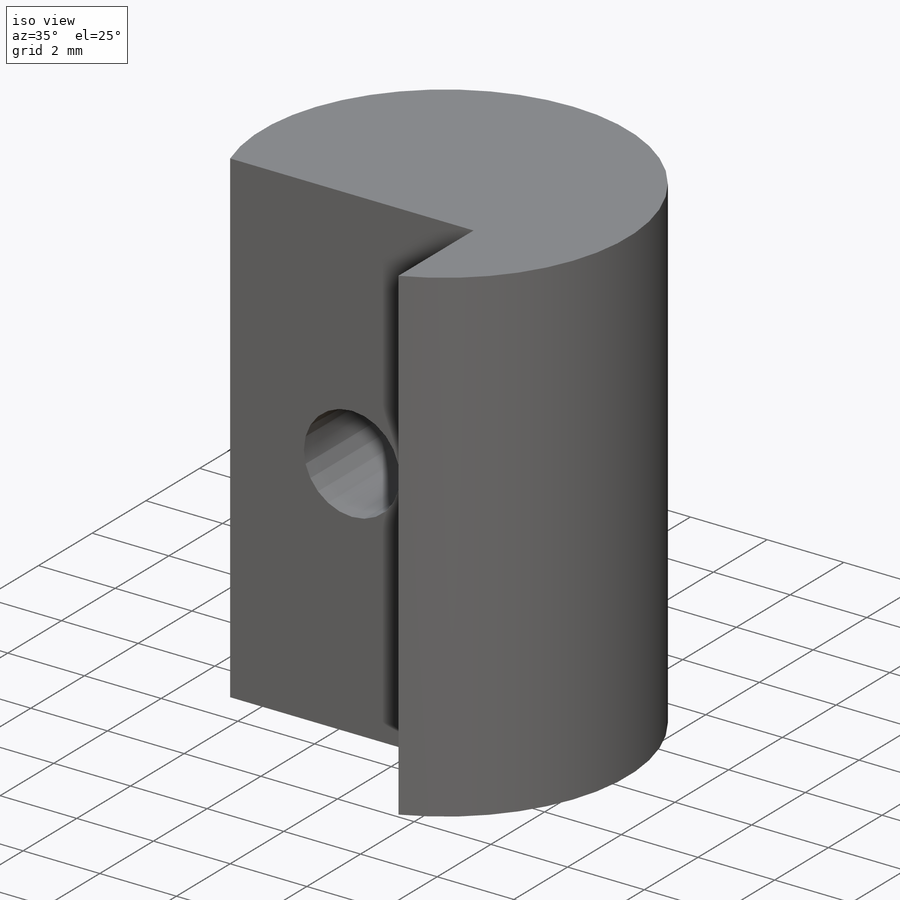
[diagram: iso view]
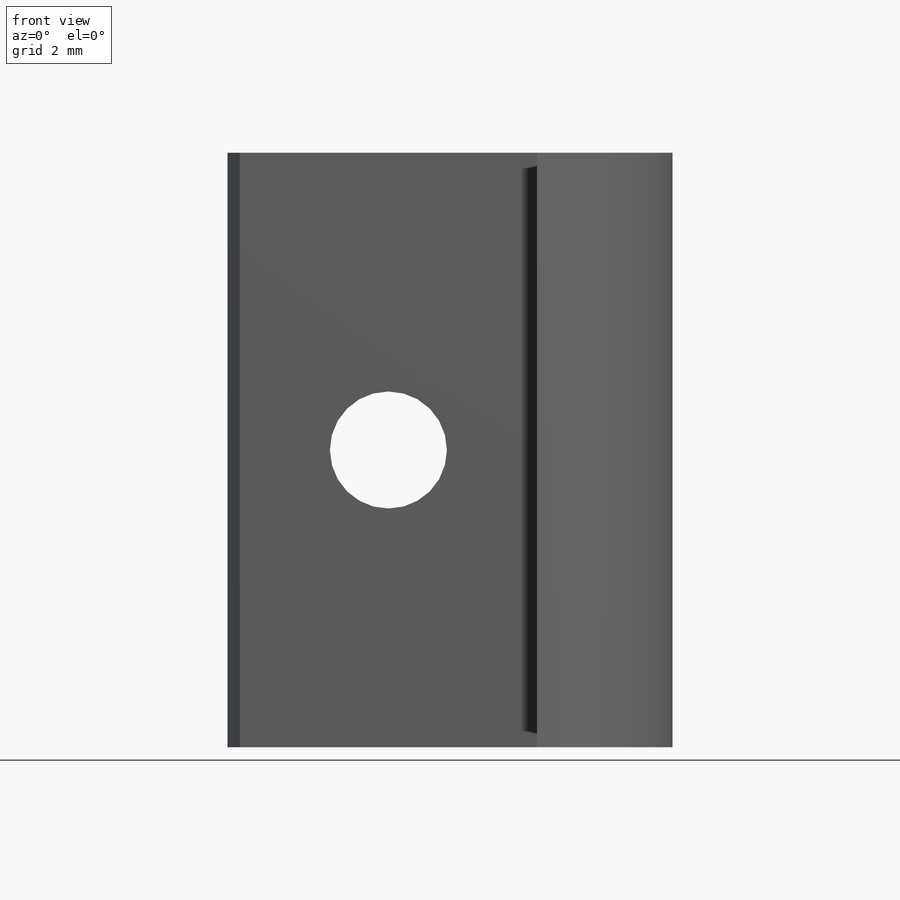
[diagram: front view]
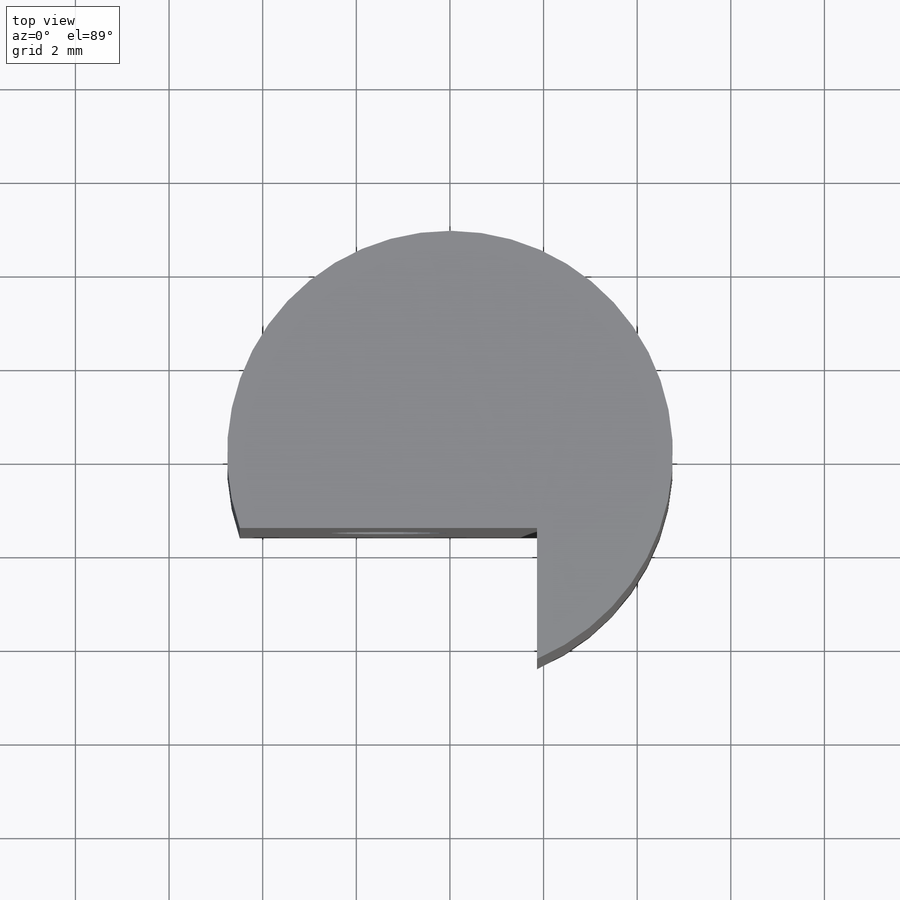
[diagram: top view]
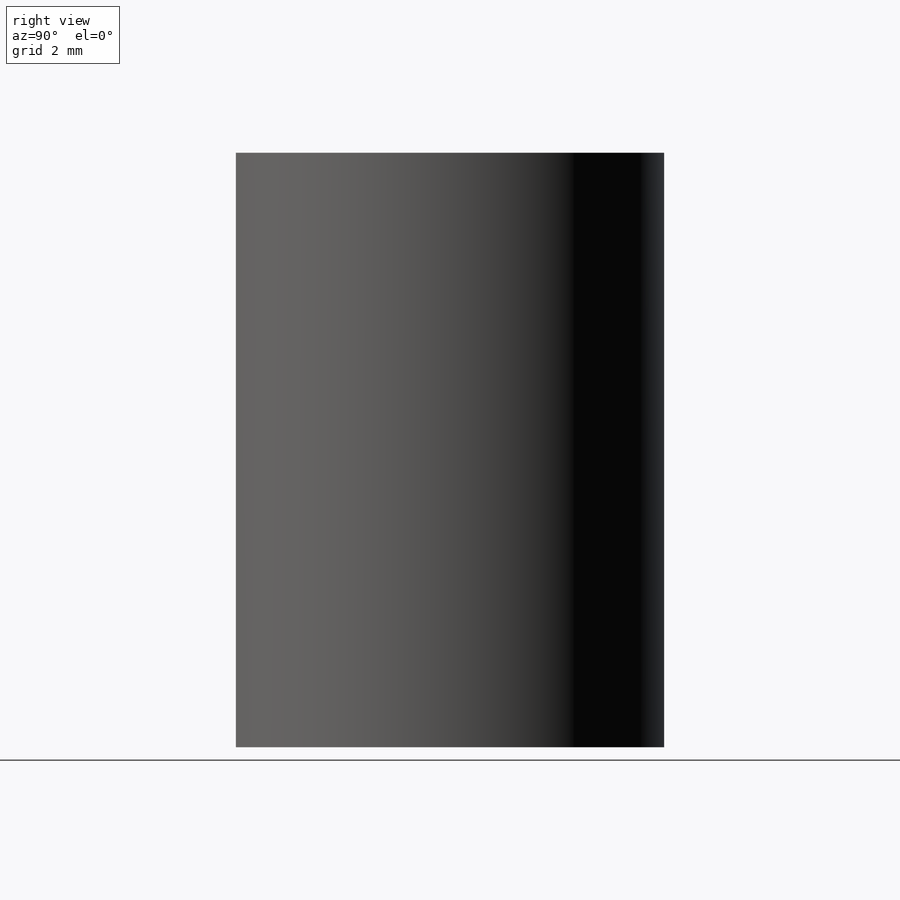
[diagram: right view]
SOLIDWORKS PART (.sldprt)
format: sldprt  version: not decoded by parser v0  size: 197,632 bytes
history: native  units: mm
features: sketch x5, material x1, extrude x1, cut_extrude x1, hole x1, thread x1 (+13 scaffold rows collapsed)
feature tree (23):
  scaffold x13  (default folders/planes/origin — collapsed)
  material  "Material <not specified>"
  sketch  "Profile Sketch"  dims[D1=9.525mm]
  extrude  "Boss-Extrude1"  Depth=12.7mm
  sketch  "Plate Relief Sketch"  dims[c1.D1=~9.082614mm c1.D2=~11.246742mm c2.D1=3.175mm c2.D2=6.35mm]
  cut_extrude  "Plate Relief Cut"  [1 undecoded]
  sketch  "Screw Mounting Sketch"  dims[c1.D1=12.7mm c1.D2=3.175mm c2.D1=3.175mm]
  hole  "M3x0.5 Tapped Hole1"  Diameter=2.5mm Depth=6.35mm
  sketch  "3DSketch2"
  sketch  "Sketch2"  dims[hole-wizard template sketch: 60 standard entries collapsed; hole parameters kept: c18.Thru Tap Drill Depth=6.35mm]
  thread  "Hole Thread1"  Diameter=3mm  [1 undecoded]
decode coverage: 7 of 9 modeling features carry decoded parameters
note: ~ marks probable driven/reference dimensions
note: 2 parameter values undecoded
note: suppression state not decoded; provenance and decode notes live in map.json
